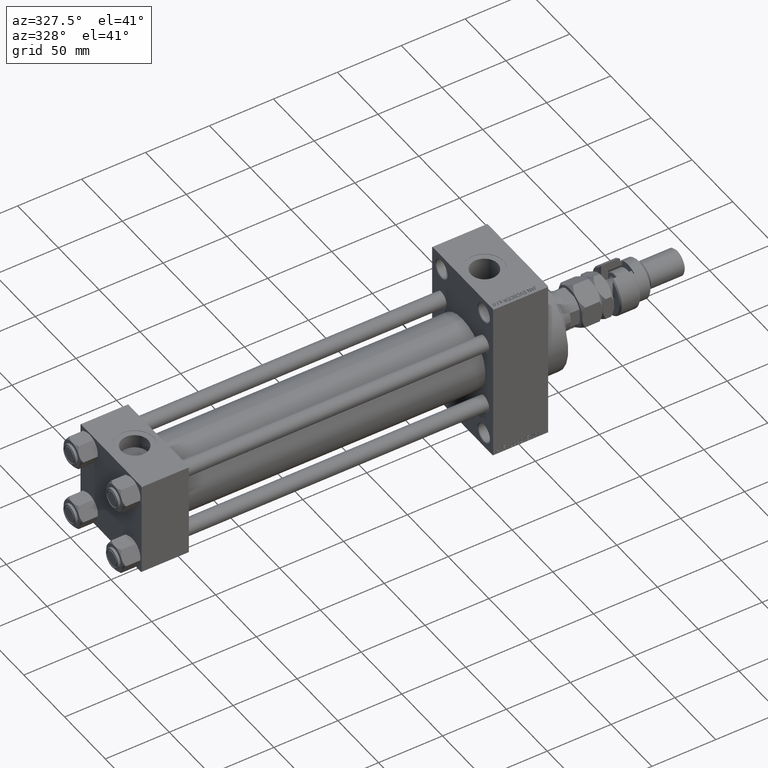
[diagram: clean part render]
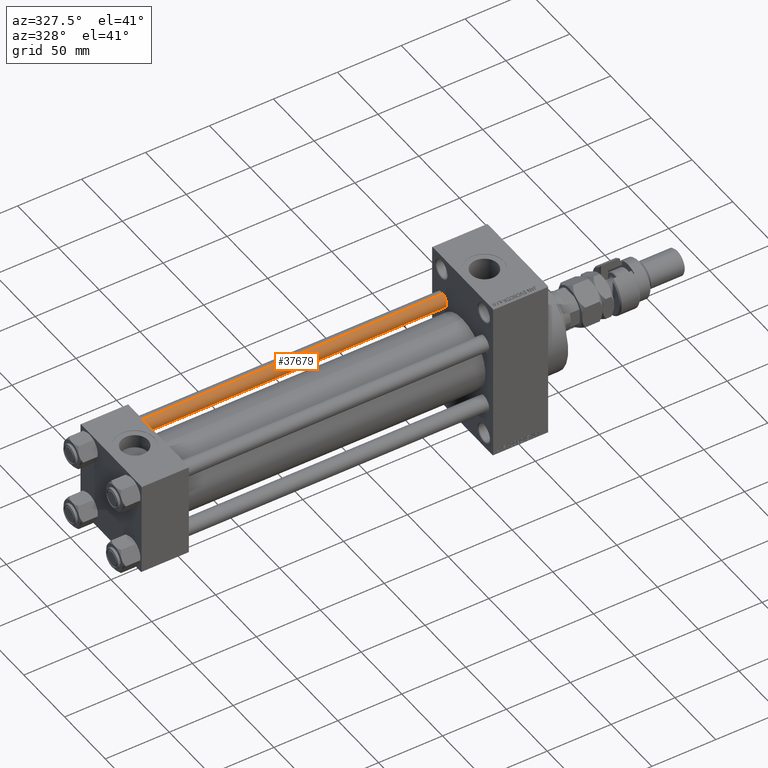
[diagram: same view with one face highlighted and labeled with its STEP entity id]
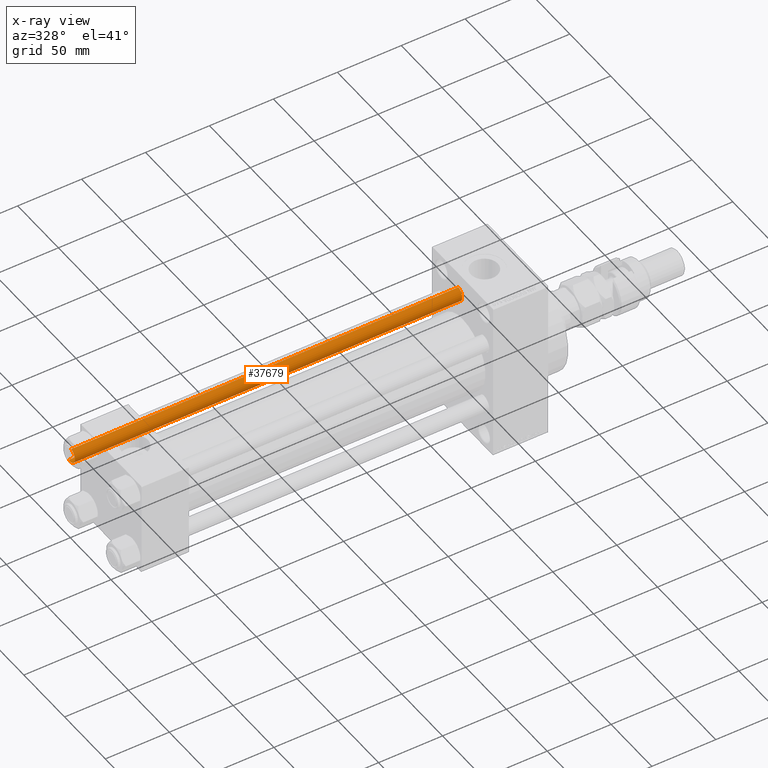
[diagram: x-ray of the same camera — body ghosted, the highlighted face saturated]
A machine part, auxiliary view. The second image highlights one B-rep face of the part: STEP entity #37679.
The next image is the same camera in x-ray: the body ghosted, the highlighted face saturated — about 0% of this face is hidden behind the body in this view.
In plain terms, the highlighted cylindrical surface (edge-blend (fillet) strip) has radius 6 mm, axis along (-1, -0, 0).
Its self-contained STEP definition (entity closure, byte-faithful):
#288 = DIRECTION ( 'NONE',  ( -0.000000000000000000, -0.000000000000000000, -1.000000000000000000 ) ) ;
#549 = CARTESIAN_POINT ( 'NONE',  ( 6.000000000000000888, 7.347880794884120722E-16, 304.0000000000000000 ) ) ;
#1235 = VECTOR ( 'NONE', #288, 1000.000000000000000 ) ;
#2586 = FACE_OUTER_BOUND ( 'NONE', #49532, .T. ) ;
#4832 = LINE ( 'NONE', #549, #1235 ) ;
#5173 = VERTEX_POINT ( 'NONE', #46791 ) ;
#5794 = VERTEX_POINT ( 'NONE', #19737 ) ;
#6893 = CARTESIAN_POINT ( 'NONE',  ( 0.000000000000000000, 0.000000000000000000, 304.0000000000000000 ) ) ;
#10452 = DIRECTION ( 'NONE',  ( -0.000000000000000000, -0.000000000000000000, -1.000000000000000000 ) ) ;
#10835 = AXIS2_PLACEMENT_3D ( 'NONE', #6893, #10452, #25715 ) ;
#12450 = VERTEX_POINT ( 'NONE', #18109 ) ;
#13775 = CIRCLE ( 'NONE', #49469, 6.000000000000000888 ) ;
#14269 = DIRECTION ( 'NONE',  ( 1.000000000000000000, 0.000000000000000000, 0.000000000000000000 ) ) ;
#14622 = EDGE_CURVE ( 'NONE', #5173, #12450, #4832, .T. ) ;
#15442 = ORIENTED_EDGE ( 'NONE', *, *, #41897, .T. ) ;
#16583 = CARTESIAN_POINT ( 'NONE',  ( -6.000000000000000888, 0.000000000000000000, 303.5000000000000000 ) ) ;
#17233 = LINE ( 'NONE', #40123, #19029 ) ;
#18109 = CARTESIAN_POINT ( 'NONE',  ( 6.000000000000000888, 7.347880794884120722E-16, 0.4999999999999449329 ) ) ;
#18338 = AXIS2_PLACEMENT_3D ( 'NONE', #36903, #25436, #29253 ) ;
#19029 = VECTOR ( 'NONE', #40842, 1000.000000000000000 ) ;
#19277 = ORIENTED_EDGE ( 'NONE', *, *, #14622, .F. ) ;
#19737 = CARTESIAN_POINT ( 'NONE',  ( -6.000000000000000888, 0.000000000000000000, 0.4999999999999449329 ) ) ;
#21324 = EDGE_CURVE ( 'NONE', #5794, #12450, #13775, .T. ) ;
#24976 = ORIENTED_EDGE ( 'NONE', *, *, #21324, .T. ) ;
#25436 = DIRECTION ( 'NONE',  ( 0.000000000000000000, 0.000000000000000000, -1.000000000000000000 ) ) ;
#25715 = DIRECTION ( 'NONE',  ( -1.000000000000000000, 0.000000000000000000, 0.000000000000000000 ) ) ;
#26214 = CYLINDRICAL_SURFACE ( 'NONE', #10835, 6.000000000000000888 ) ;
#27009 = ORIENTED_EDGE ( 'NONE', *, *, #38869, .T. ) ;
#29253 = DIRECTION ( 'NONE',  ( 1.000000000000000000, 0.000000000000000000, 0.000000000000000000 ) ) ;
#32909 = CIRCLE ( 'NONE', #18338, 6.000000000000000888 ) ;
#33832 = DIRECTION ( 'NONE',  ( -0.000000000000000000, -0.000000000000000000, 1.000000000000000000 ) ) ;
#36903 = CARTESIAN_POINT ( 'NONE',  ( 0.000000000000000000, 0.000000000000000000, 303.5000000000000000 ) ) ;
#37679 = ADVANCED_FACE ( 'NONE', ( #2586 ), #26214, .T. ) ;
#38869 = EDGE_CURVE ( 'NONE', #46824, #5794, #17233, .T. ) ;
#40123 = CARTESIAN_POINT ( 'NONE',  ( -6.000000000000000888, 0.000000000000000000, 304.0000000000000000 ) ) ;
#40842 = DIRECTION ( 'NONE',  ( -0.000000000000000000, -0.000000000000000000, -1.000000000000000000 ) ) ;
#41897 = EDGE_CURVE ( 'NONE', #5173, #46824, #32909, .T. ) ;
#46791 = CARTESIAN_POINT ( 'NONE',  ( 6.000000000000000888, 7.347880794884120722E-16, 303.5000000000000000 ) ) ;
#46824 = VERTEX_POINT ( 'NONE', #16583 ) ;
#49080 = CARTESIAN_POINT ( 'NONE',  ( 0.000000000000000000, 0.000000000000000000, 0.4999999999999449329 ) ) ;
#49469 = AXIS2_PLACEMENT_3D ( 'NONE', #49080, #33832, #14269 ) ;
#49532 = EDGE_LOOP ( 'NONE', ( #19277, #15442, #27009, #24976 ) ) ;